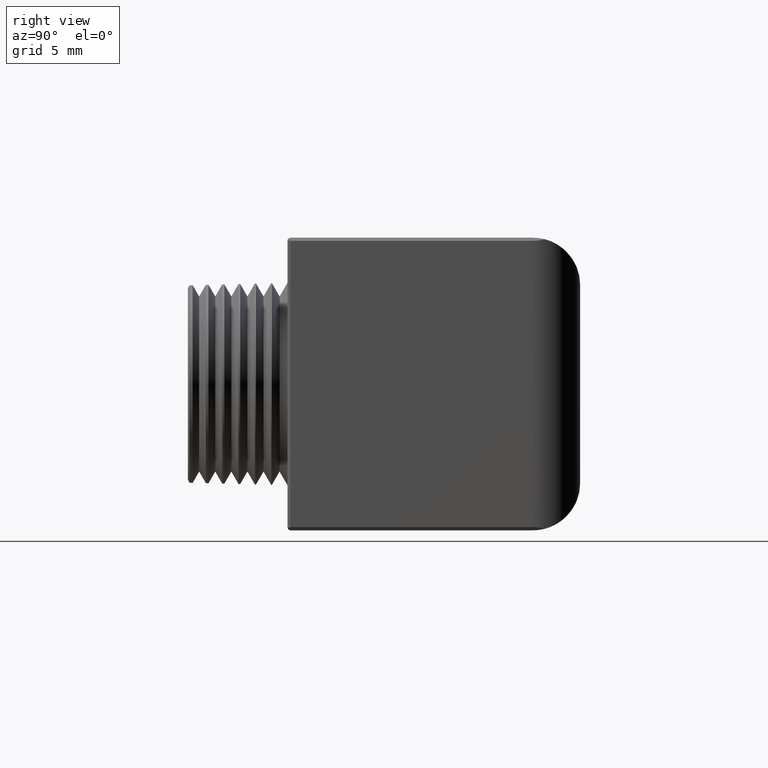
[diagram: clean part render]
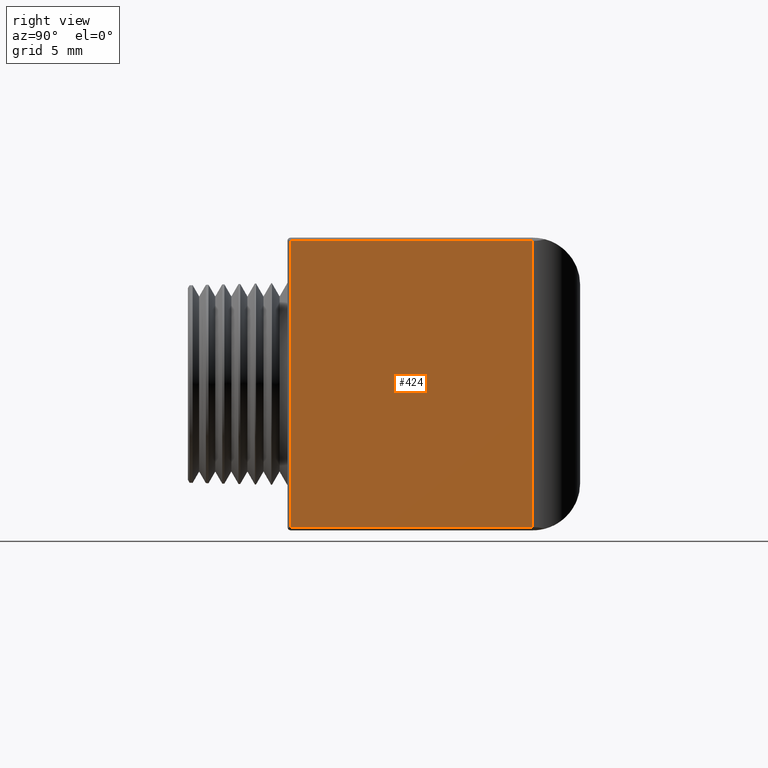
[diagram: same view with one face highlighted and labeled with its STEP entity id]
A machine part, right view. The second image highlights one B-rep face of the part: STEP entity #424.
In plain terms, the highlighted planar face has unit normal (1, 0, 0).
Its self-contained STEP definition (entity closure, byte-faithful):
#350 = VERTEX_POINT ( 'NONE', #1800 ) ;
#351 = ORIENTED_EDGE ( 'NONE', *, *, #352, .T. ) ;
#352 = EDGE_CURVE ( 'NONE', #350, #995, #1799, .T. ) ;
#353 = ORIENTED_EDGE ( 'NONE', *, *, #994, .T. ) ;
#354 = ORIENTED_EDGE ( 'NONE', *, *, #355, .T. ) ;
#355 = EDGE_CURVE ( 'NONE', #996, #428, #1794, .T. ) ;
#424 = ADVANCED_FACE ( 'NONE', ( #1853 ), #1906, .T. ) ;
#425 = EDGE_LOOP ( 'NONE', ( #426, #351, #353, #354 ) ) ;
#426 = ORIENTED_EDGE ( 'NONE', *, *, #427, .T. ) ;
#427 = EDGE_CURVE ( 'NONE', #428, #350, #1901, .T. ) ;
#428 = VERTEX_POINT ( 'NONE', #1897 ) ;
#994 = EDGE_CURVE ( 'NONE', #995, #996, #2920, .T. ) ;
#995 = VERTEX_POINT ( 'NONE', #2916 ) ;
#996 = VERTEX_POINT ( 'NONE', #2915 ) ;
#1791 = DIRECTION ( 'NONE',  ( -1.501015381134210300E-016, 1.000000000000000000, 0.0000000000000000000 ) ) ;
#1792 = VECTOR ( 'NONE', #1791, 39.37007874015748100 ) ;
#1793 = CARTESIAN_POINT ( 'NONE',  ( 0.7885000000000002000, 0.4549999999999999000, -0.4450000000000000100 ) ) ;
#1794 = LINE ( 'NONE', #1793, #1792 ) ;
#1795 = DIRECTION ( 'NONE',  ( 1.501015381134210300E-016, -1.000000000000000000, 0.0000000000000000000 ) ) ;
#1796 = VECTOR ( 'NONE', #1795, 39.37007874015748100 ) ;
#1797 = CARTESIAN_POINT ( 'NONE',  ( 0.7885000000000003100, -0.4450000000000000100, 0.4450000000000000100 ) ) ;
#1799 = LINE ( 'NONE', #1797, #1796 ) ;
#1800 = CARTESIAN_POINT ( 'NONE',  ( 0.7885000000000002000, 0.3075000000000000500, 0.4450000000000001200 ) ) ;
#1853 = FACE_OUTER_BOUND ( 'NONE', #425, .T. ) ;
#1897 = CARTESIAN_POINT ( 'NONE',  ( 0.7885000000000002000, 0.3075000000000000500, -0.4449999999999999500 ) ) ;
#1898 = DIRECTION ( 'NONE',  ( 0.0000000000000000000, 0.0000000000000000000, 1.000000000000000000 ) ) ;
#1899 = VECTOR ( 'NONE', #1898, 39.37007874015748100 ) ;
#1900 = CARTESIAN_POINT ( 'NONE',  ( 0.7885000000000002000, 0.3075000000000000500, 0.4550000000000000200 ) ) ;
#1901 = LINE ( 'NONE', #1900, #1899 ) ;
#1902 = DIRECTION ( 'NONE',  ( -1.501015381134210300E-016, 1.000000000000000000, 0.0000000000000000000 ) ) ;
#1903 = DIRECTION ( 'NONE',  ( 1.000000000000000000, 1.501015381134210300E-016, 0.0000000000000000000 ) ) ;
#1904 = CARTESIAN_POINT ( 'NONE',  ( 0.7885000000000002000, 0.4549999999999999000, -1.881387941620372000 ) ) ;
#1905 = AXIS2_PLACEMENT_3D ( 'NONE', #1904, #1903, #1902 ) ;
#1906 = PLANE ( 'NONE',  #1905 ) ;
#2915 = CARTESIAN_POINT ( 'NONE',  ( 0.7885000000000003100, -0.4450000000000000100, -0.4450000000000000100 ) ) ;
#2916 = CARTESIAN_POINT ( 'NONE',  ( 0.7885000000000003100, -0.4450000000000000100, 0.4450000000000002800 ) ) ;
#2917 = DIRECTION ( 'NONE',  ( 0.0000000000000000000, 0.0000000000000000000, -1.000000000000000000 ) ) ;
#2918 = VECTOR ( 'NONE', #2917, 39.37007874015748100 ) ;
#2919 = CARTESIAN_POINT ( 'NONE',  ( 0.7885000000000003100, -0.4450000000000000100, -1.881387941620372000 ) ) ;
#2920 = LINE ( 'NONE', #2919, #2918 ) ;